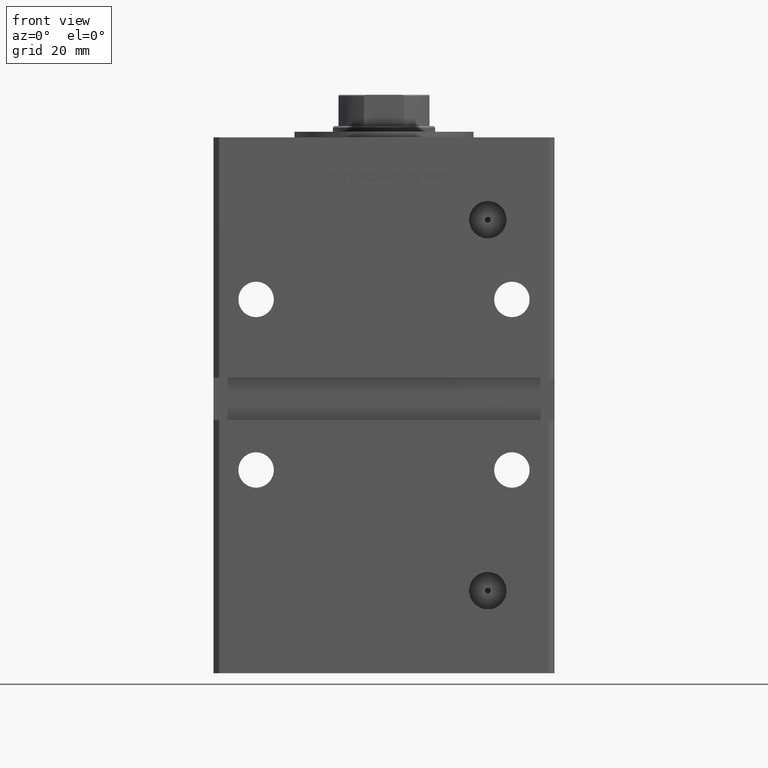
[diagram: clean part render]
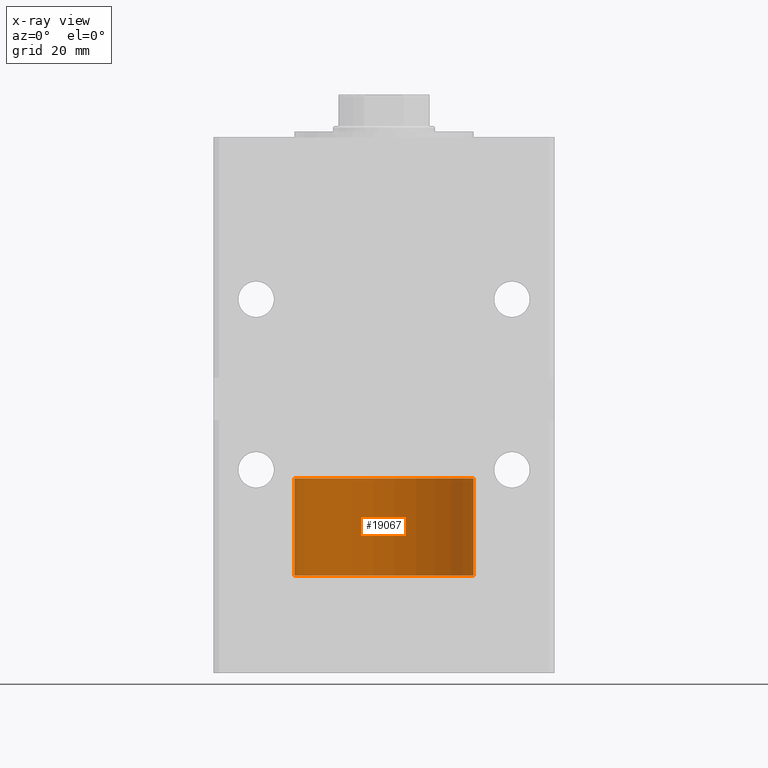
[diagram: x-ray — body ghosted, one internal face saturated and labeled with its STEP entity id]
A machine part, front view, then the same camera in x-ray: the body is ghosted and one INTERNAL B-rep face — a face not visible from any outside direction — is saturated and labeled: STEP entity #19067.
In plain terms, the highlighted cylindrical surface (partial cylindrical patch) has radius 31.5 mm, axis along (-0, -0, -1).
Its self-contained STEP definition (entity closure, byte-faithful):
#1309 = CARTESIAN_POINT ( 'NONE',  ( 0.000000000000000000, 0.000000000000000000, 34.25000000000000000 ) ) ;
#1569 = DIRECTION ( 'NONE',  ( -0.000000000000000000, -0.000000000000000000, -1.000000000000000000 ) ) ;
#4207 = EDGE_CURVE ( 'NONE', #21312, #28675, #48098, .T. ) ;
#6750 = DIRECTION ( 'NONE',  ( 0.000000000000000000, 0.000000000000000000, 1.000000000000000000 ) ) ;
#7250 = EDGE_CURVE ( 'NONE', #50887, #47330, #41211, .T. ) ;
#8199 = AXIS2_PLACEMENT_3D ( 'NONE', #1309, #1569, #22745 ) ;
#8957 = DIRECTION ( 'NONE',  ( 1.000000000000000000, 0.000000000000000000, 0.000000000000000000 ) ) ;
#9339 = AXIS2_PLACEMENT_3D ( 'NONE', #43489, #6750, #35178 ) ;
#9545 = DIRECTION ( 'NONE',  ( -0.000000000000000000, -0.000000000000000000, -1.000000000000000000 ) ) ;
#10304 = DIRECTION ( 'NONE',  ( -0.000000000000000000, -0.000000000000000000, -1.000000000000000000 ) ) ;
#11776 = CARTESIAN_POINT ( 'NONE',  ( 31.50000000000000000, 3.857637417314162689E-15, 0.000000000000000000 ) ) ;
#15149 = ORIENTED_EDGE ( 'NONE', *, *, #31286, .F. ) ;
#17531 = DIRECTION ( 'NONE',  ( 0.000000000000000000, 0.000000000000000000, 1.000000000000000000 ) ) ;
#18096 = CARTESIAN_POINT ( 'NONE',  ( 31.50000000000000000, 3.857637417314162689E-15, 34.25000000000000000 ) ) ;
#18871 = VECTOR ( 'NONE', #9545, 1000.000000000000000 ) ;
#19067 = ADVANCED_FACE ( 'NONE', ( #33997 ), #51150, .T. ) ;
#21312 = VERTEX_POINT ( 'NONE', #18096 ) ;
#22745 = DIRECTION ( 'NONE',  ( -1.000000000000000000, 0.000000000000000000, 0.000000000000000000 ) ) ;
#23474 = ORIENTED_EDGE ( 'NONE', *, *, #32150, .T. ) ;
#24325 = CARTESIAN_POINT ( 'NONE',  ( -31.50000000000000000, 0.000000000000000000, 34.25000000000000000 ) ) ;
#26416 = EDGE_LOOP ( 'NONE', ( #15149, #28812, #23474, #44258 ) ) ;
#28675 = VERTEX_POINT ( 'NONE', #11776 ) ;
#28708 = CARTESIAN_POINT ( 'NONE',  ( -31.50000000000000000, 0.000000000000000000, 34.25000000000000000 ) ) ;
#28812 = ORIENTED_EDGE ( 'NONE', *, *, #4207, .T. ) ;
#31286 = EDGE_CURVE ( 'NONE', #21312, #50887, #40155, .T. ) ;
#32150 = EDGE_CURVE ( 'NONE', #28675, #47330, #46200, .T. ) ;
#33997 = FACE_OUTER_BOUND ( 'NONE', #26416, .T. ) ;
#35178 = DIRECTION ( 'NONE',  ( 1.000000000000000000, 0.000000000000000000, 0.000000000000000000 ) ) ;
#40155 = CIRCLE ( 'NONE', #9339, 31.50000000000000000 ) ;
#41211 = LINE ( 'NONE', #24325, #18871 ) ;
#41659 = CARTESIAN_POINT ( 'NONE',  ( 0.000000000000000000, 0.000000000000000000, 0.000000000000000000 ) ) ;
#43489 = CARTESIAN_POINT ( 'NONE',  ( 0.000000000000000000, 0.000000000000000000, 34.25000000000000000 ) ) ;
#44258 = ORIENTED_EDGE ( 'NONE', *, *, #7250, .F. ) ;
#44488 = VECTOR ( 'NONE', #10304, 1000.000000000000000 ) ;
#46200 = CIRCLE ( 'NONE', #47887, 31.50000000000000000 ) ;
#47026 = CARTESIAN_POINT ( 'NONE',  ( 31.50000000000000000, 3.857637417314162689E-15, 34.25000000000000000 ) ) ;
#47330 = VERTEX_POINT ( 'NONE', #48922 ) ;
#47887 = AXIS2_PLACEMENT_3D ( 'NONE', #41659, #17531, #8957 ) ;
#48098 = LINE ( 'NONE', #47026, #44488 ) ;
#48922 = CARTESIAN_POINT ( 'NONE',  ( -31.50000000000000000, 0.000000000000000000, 0.000000000000000000 ) ) ;
#50887 = VERTEX_POINT ( 'NONE', #28708 ) ;
#51150 = CYLINDRICAL_SURFACE ( 'NONE', #8199, 31.50000000000000000 ) ;